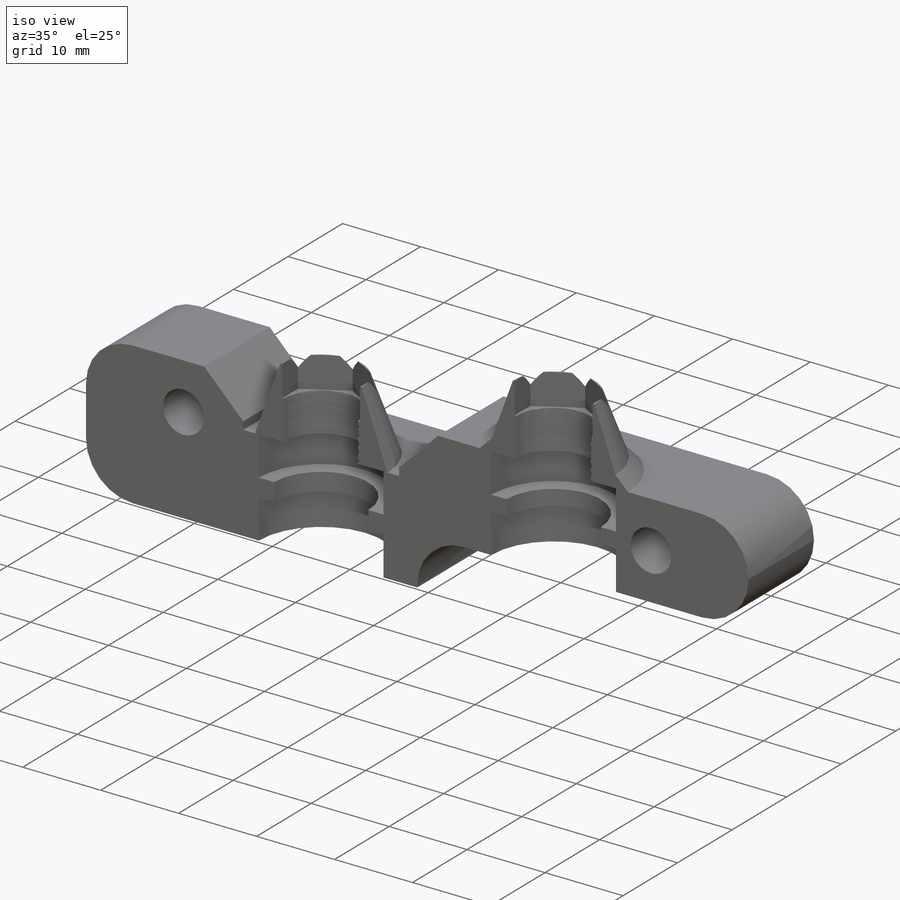
[diagram: iso view]
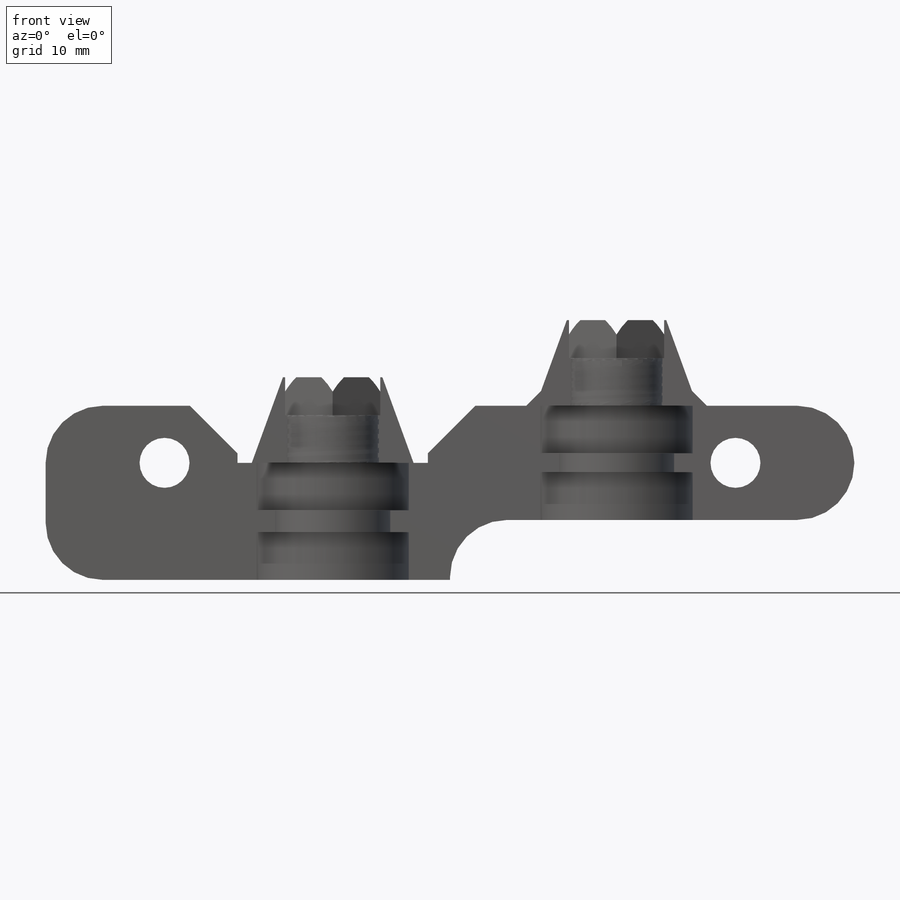
[diagram: front view]
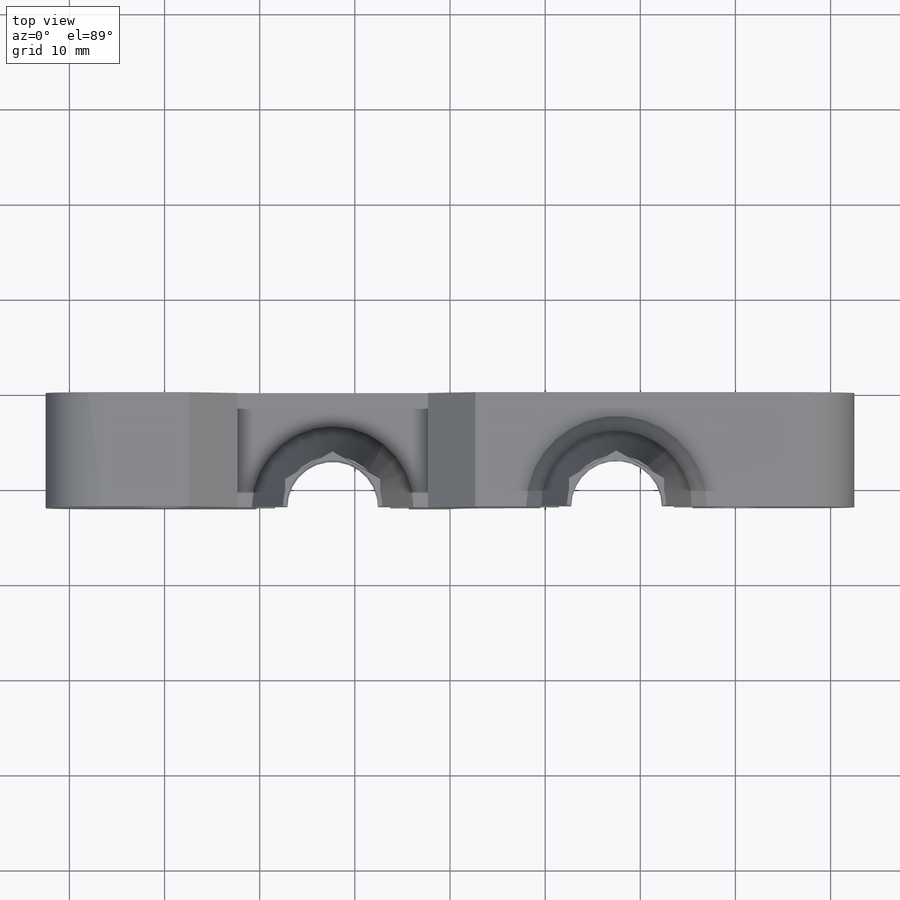
[diagram: top view]
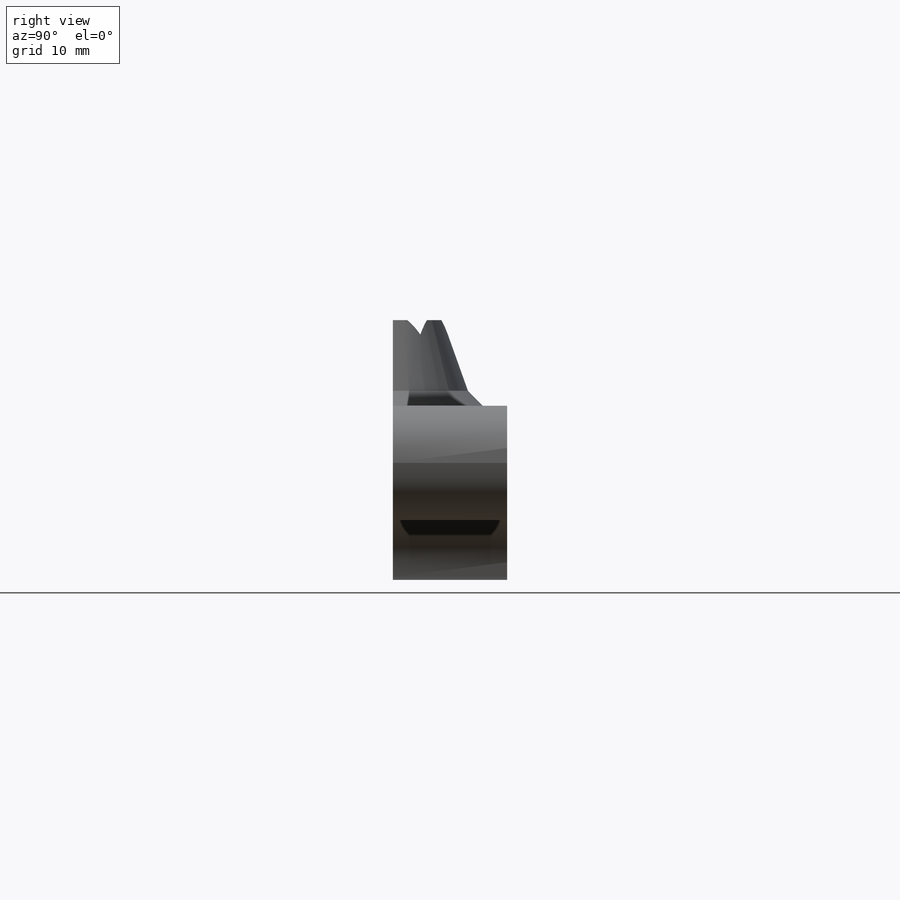
[diagram: right view]
SOLIDWORKS PART (.sldprt)
format: sldprt  version: not decoded by parser v0  size: 839,168 bytes
history: native  units: mm
features: sketch x24, cut_extrude x15, extrude x5, chamfer x3, fillet x2, helix x2, plane x2, sweep x2, material x1, mirror x1 (+13 scaffold rows collapsed)
feature tree (70):
  scaffold x13  (default folders/planes/origin — collapsed)
  material  "Material <not specified>"
  sketch  "Sketch1"  dims[D1=85.0mm D2=12.0mm]
  extrude  "Main Body Extrude"  Depth=12mm
  sketch  "Sketch2"  dims[D1=16.0mm D2=16.0mm D3=25.0mm D4=25.0mm]
  cut_extrude  "Hexagon cut ex-1"  Depth=5mm
  sketch  "Sketch3"  dims[D1=16.0mm D2=16.0mm D3=25.0mm D4=25.0mm]
  cut_extrude  "Hexagon cut ex-2"  Depth=5mm
  sketch  "Sketch4"  dims[D1=12.0mm D2=12.1mm]
  cut_extrude  "Hexagon cut ex-3"  Depth=5mm
  sketch  "Sketch5"  dims[D3=5.25mm D4=5.25mm D1=12.5mm D2=12.5mm D5=60.0mm]
  cut_extrude  "Mounting holes"  [1 undecoded]
  sketch  "Sketch7"  dims[D1=17.0mm D2=17.0mm]
  extrude  "PTC Extrude"  Depth=9mm
  chamfer  "Chamfer1"  Distance=1mm Angle=45deg
  chamfer  "Chamfer2"  Distance=1mm Angle=45deg
  sketch  "Sketch10"  dims[D1=10.0mm D2=10.0mm]
  cut_extrude  "PTC Mount cut ex-1"  Depth=4mm
  sketch  "Sketch11"  dims[D1=9.5mm D2=9.5mm]
  cut_extrude  "PTC thread cut"  [1 undecoded]
  sketch  "Sketch12"
  cut_extrude  "Cut-Extrude11"  [1 undecoded]
  sketch  "Sketch13"
  extrude  "Boss-Extrude4"  [1 undecoded]
  sketch  "Sketch14"
  cut_extrude  "Cut-Extrude12"  [1 undecoded]
  sketch  "Sketch15"  dims[D1=85.0mm D2=42.5mm]
  extrude  "Boss-Extrude5"  Depth=6.3mm
  sketch  "Sketch17"  dims[D1=16.0mm]
  sketch  "Sketch18"  dims[D1=6.0mm D2=10.0mm]
  cut_extrude  "Cut-Extrude14"  [1 undecoded]
  sketch  "Sketch19"  dims[D1=16.0mm]
  fillet  "Fillet4"  Radius=6mm
  fillet  "Fillet5"  Radius=6mm
  cut_extrude  "Cut-Extrude15"  Depth=5mm
  cut_extrude  "Cut-Extrude16"  Depth=5mm
  sketch  "Sketch20"  dims[D1=12.1mm]
  cut_extrude  "Cut-Extrude17"  [1 undecoded]
  sketch  "Sketch23"
  helix  "Helix/Spiral1"  Pitch=15mm
  plane  "Plane1"
  sketch  "Sketch27"  dims[D1=17.0mm]
  extrude  "Boss-Extrude6"  Depth=9mm
  sketch  "Sketch28"  dims[D1=10.0mm]
  sketch  "Sketch26"  dims[D1=0.65mm]
  sweep  "Cut-Sweep10"
  cut_extrude  "Cut-Extrude18"  Depth=4mm
  sketch  "Sketch29"
  cut_extrude  "Cut-Extrude20"  Depth=4mm
  sketch  "Sketch31"
  cut_extrude  "Cut-Extrude21"  [1 undecoded]
  sketch  "Sketch32"
  helix  "Helix/Spiral2"  Pitch=5.5mm
  plane  "Helix-2 plane"
  sketch  "Sketch33"  dims[D1=0.5mm]
  sweep  "Cut-Sweep11"
  chamfer  "Chamfer3"  Distance=5mm Angle=45deg
  mirror  "Mirror1"
decode coverage: 36 of 54 modeling features carry decoded parameters
note: 8 parameter values undecoded
summary: no parameter record found for 8 features
note: suppression state not decoded; provenance and decode notes live in map.json
